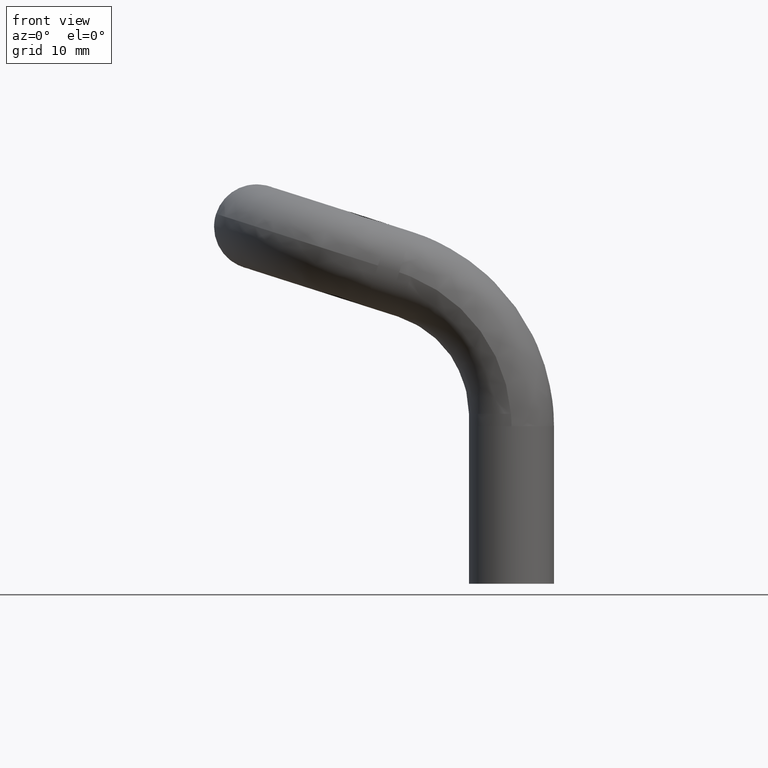
[diagram: clean part render]
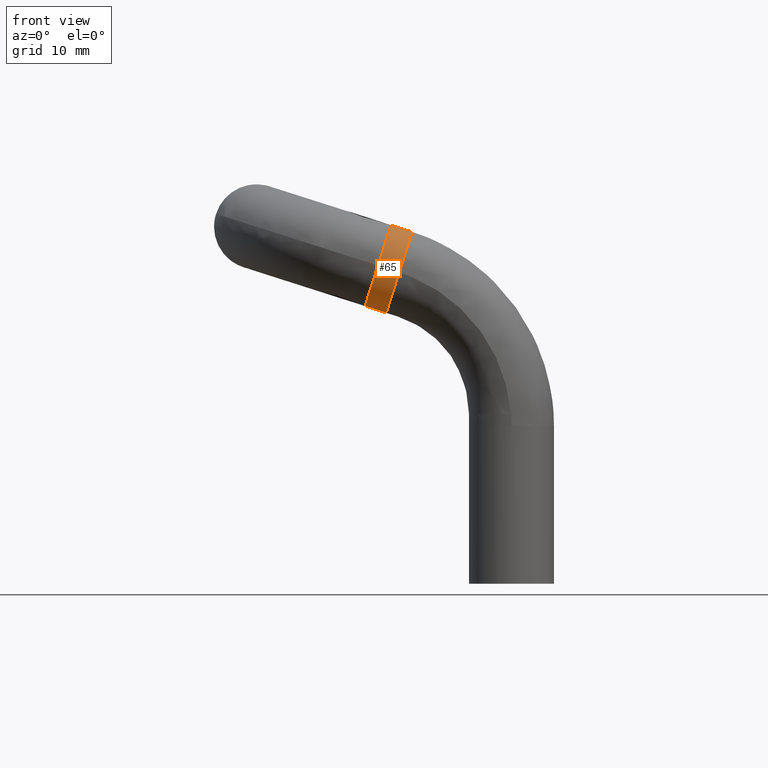
[diagram: same view with one face highlighted and labeled with its STEP entity id]
A machine part, front view. The second image highlights one B-rep face of the part: STEP entity #65.
In plain terms, the highlighted cylindrical surface (partial cylindrical patch) has radius 5 mm, axis along (-0.9526, -0, 0.3043).
Its self-contained STEP definition (entity closure, byte-faithful):
#65=ADVANCED_FACE('',(#331),#330,.T.);
#330=CYLINDRICAL_SURFACE('',#948,5.00000000000E+00);
#331=FACE_OUTER_BOUND('',#949,.T.);
#945=CARTESIAN_POINT('',(9.39722705799E+00,-8.50014503229E-14,2.94128064213E+01));
#946=DIRECTION('',(-9.52563847425E-01,-0.00000000000E+00,3.04338818720E-01));
#947=DIRECTION('',(3.04338818720E-01,0.00000000000E+00,9.52563847425E-01));
#948=AXIS2_PLACEMENT_3D('',#945,#946,#947);
#949=EDGE_LOOP('',(#1182,#1183,#1184,#1185,#1186,#1187));
#1182=ORIENTED_EDGE('',*,*,#1291,.T.);
#1183=ORIENTED_EDGE('',*,*,#1293,.F.);
#1184=ORIENTED_EDGE('',*,*,#1324,.T.);
#1185=ORIENTED_EDGE('',*,*,#1326,.T.);
#1186=ORIENTED_EDGE('',*,*,#1327,.T.);
#1187=ORIENTED_EDGE('',*,*,#1325,.F.);
#1291=EDGE_CURVE('',#1506,#1546,#1553,.T.);
#1293=EDGE_CURVE('',#1559,#1546,#1566,.T.);
#1324=EDGE_CURVE('',#1559,#1764,#1771,.T.);
#1325=EDGE_CURVE('',#1506,#1756,#1777,.T.);
#1326=EDGE_CURVE('',#1764,#1783,#1784,.T.);
#1327=EDGE_CURVE('',#1783,#1756,#1790,.T.);
#1506=VERTEX_POINT('',#2129);
#1546=VERTEX_POINT('',#2155);
#1553=CIRCLE('',#2163,5.00000000000E+00);
#1559=VERTEX_POINT('',#2164);
#1566=CIRCLE('',#2172,5.00000000000E+00);
#1756=VERTEX_POINT('',#2306);
#1764=VERTEX_POINT('',#2312);
#1771=(BOUNDED_CURVE() B_SPLINE_CURVE(1,(#2317,#2318),.UNSPECIFIED.,.F.,.F.) B_SPLINE_CURVE_WITH_KNOTS((2,2),(8.33333233997E-02,9.16666663280E-01),.UNSPECIFIED.) CURVE() GEOMETRIC_REPRESENTATION_ITEM() RATIONAL_B_SPLINE_CURVE((1.00000000000E+00,1.00000000000E+00)) REPRESENTATION_ITEM('') );
#1777=(BOUNDED_CURVE() B_SPLINE_CURVE(1,(#2319,#2320),.UNSPECIFIED.,.F.,.F.) B_SPLINE_CURVE_WITH_KNOTS((2,2),(8.33333333333E-02,9.16666666667E-01),.UNSPECIFIED.) CURVE() GEOMETRIC_REPRESENTATION_ITEM() RATIONAL_B_SPLINE_CURVE((7.50000000000E-01,7.50000000000E-01)) REPRESENTATION_ITEM('') );
#1783=VERTEX_POINT('',#2321);
#1784=CIRCLE('',#2325,5.00000000000E+00);
#1790=CIRCLE('',#2329,5.00000000000E+00);
#2129=CARTESIAN_POINT('',(-1.47392565379E+01,-1.11022302463E-13,3.18752858781E+01));
#2155=CARTESIAN_POINT('',(-1.32175624443E+01,-5.00000000000E+00,3.66381051152E+01));
#2160=CARTESIAN_POINT('',(-1.32175624443E+01,-8.50014503229E-14,3.66381051152E+01));
#2161=DIRECTION('',(-9.52563847425E-01,0.00000000000E+00,3.04338818720E-01));
#2162=DIRECTION('',(-3.04338818720E-01,-0.00000000000E+00,-9.52563847425E-01));
#2163=AXIS2_PLACEMENT_3D('',#2160,#2161,#2162);
#2164=CARTESIAN_POINT('',(-1.16958683507E+01,-7.78551696649E-10,4.14009243524E+01));
#2169=CARTESIAN_POINT('',(-1.32175624443E+01,-8.50014503229E-14,3.66381051152E+01));
#2170=DIRECTION('',(9.52563847425E-01,3.30486973699E-16,-3.04338818720E-01));
#2171=DIRECTION('',(-3.70714230858E-16,1.00000000000E+00,-7.43973458189E-17));
#2172=AXIS2_PLACEMENT_3D('',#2169,#2170,#2171);
#2306=CARTESIAN_POINT('',(-1.72332363822E+01,-8.32667268469E-14,3.26720984821E+01));
#2312=CARTESIAN_POINT('',(-1.41898481950E+01,-8.31927119786E-14,4.21977369563E+01));
#2317=CARTESIAN_POINT('',(-1.16958683210E+01,-8.50014503229E-14,4.14009243429E+01));
#2318=CARTESIAN_POINT('',(-1.41898481849E+01,-8.50014503229E-14,4.21977369531E+01));
#2319=CARTESIAN_POINT('',(-1.47392565379E+01,-8.52897999140E-14,3.18752858781E+01));
#2320=CARTESIAN_POINT('',(-1.72332363822E+01,-8.55365161417E-14,3.26720984821E+01));
#2321=CARTESIAN_POINT('',(-1.57115430940E+01,-5.00000000000E+00,3.74349151983E+01));
#2322=CARTESIAN_POINT('',(-1.57115422886E+01,-8.32667268469E-14,3.74349177192E+01));
#2323=DIRECTION('',(9.52563847425E-01,2.38618992610E-16,-3.04338818720E-01));
#2324=DIRECTION('',(-3.04338818720E-01,-1.22460635382E-16,-9.52563847425E-01));
#2325=AXIS2_PLACEMENT_3D('',#2322,#2323,#2324);
#2326=CARTESIAN_POINT('',(-1.57115422886E+01,-8.32667268469E-14,3.74349177192E+01));
#2327=DIRECTION('',(9.52563847425E-01,2.38618992610E-16,-3.04338818720E-01));
#2328=DIRECTION('',(-3.04338818720E-01,-1.22460635382E-16,-9.52563847425E-01));
#2329=AXIS2_PLACEMENT_3D('',#2326,#2327,#2328);